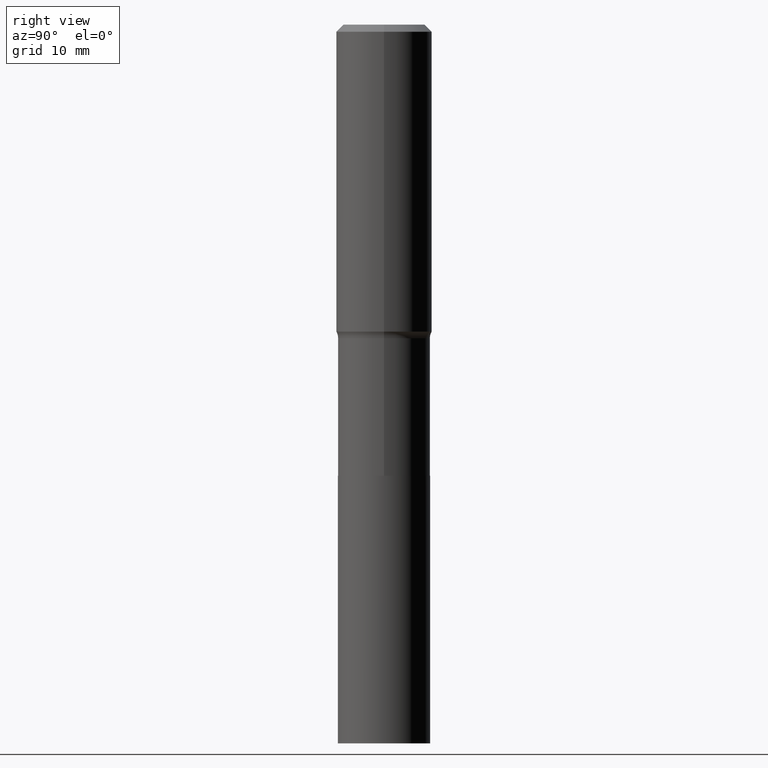
[diagram: clean part render]
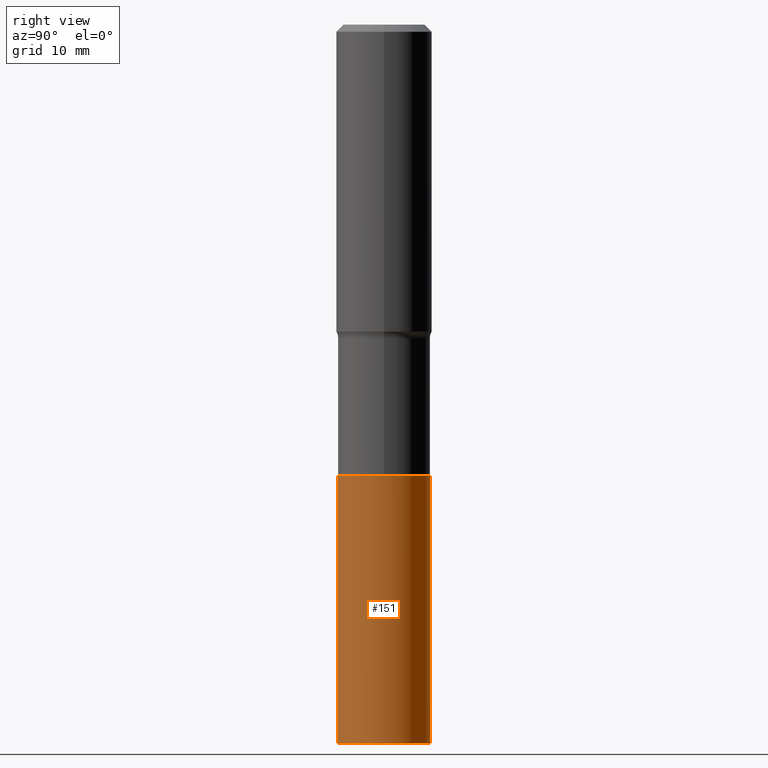
[diagram: same view with one face highlighted and labeled with its STEP entity id]
A machine part, right view. The second image highlights one B-rep face of the part: STEP entity #151.
In plain terms, the highlighted cylindrical surface (partial cylindrical patch) has radius 6.7462 mm, axis along (-0, 0, 1).
Its self-contained STEP definition (entity closure, byte-faithful):
#14 = EDGE_LOOP ( 'NONE', ( #70, #47, #389, #298 ) ) ;
#28 = AXIS2_PLACEMENT_3D ( 'NONE', #263, #376, #402 ) ;
#29 = VECTOR ( 'NONE', #385, 39.37007874015748143 ) ;
#47 = ORIENTED_EDGE ( 'NONE', *, *, #221, .T. ) ;
#59 = CIRCLE ( 'NONE', #321, 0.2656000000000000028 ) ;
#70 = ORIENTED_EDGE ( 'NONE', *, *, #204, .T. ) ;
#79 = DIRECTION ( 'NONE',  ( -6.982962677686265133E-15, -1.000000000000000000, 4.114228906120878260E-15 ) ) ;
#82 = FACE_OUTER_BOUND ( 'NONE', #14, .T. ) ;
#85 = DIRECTION ( 'NONE',  ( -6.982962677686265133E-15, -1.000000000000000000, 4.114228906120878260E-15 ) ) ;
#132 = LINE ( 'NONE', #240, #29 ) ;
#151 = ADVANCED_FACE ( 'NONE', ( #82 ), #295, .T. ) ;
#169 = CARTESIAN_POINT ( 'NONE',  ( 1.887201506178908155E-15, 0.2655999999999855699, -4.133900000000002350 ) ) ;
#178 = CIRCLE ( 'NONE', #311, 0.2656000000000000028 ) ;
#182 = DIRECTION ( 'NONE',  ( -2.446021775640540996E-29, 3.490689455109939628E-15, 1.000000000000000000 ) ) ;
#187 = VERTEX_POINT ( 'NONE', #372 ) ;
#204 = EDGE_CURVE ( 'NONE', #294, #331, #178, .T. ) ;
#221 = EDGE_CURVE ( 'NONE', #331, #187, #427, .T. ) ;
#236 = EDGE_CURVE ( 'NONE', #428, #187, #59, .T. ) ;
#240 = CARTESIAN_POINT ( 'NONE',  ( -1.854674887193408547E-15, -0.2656000000000090511, -2.594899999999999096 ) ) ;
#259 = CARTESIAN_POINT ( 'NONE',  ( -1.854674887193371076E-15, -0.2656000000000144357, -4.133899999999999686 ) ) ;
#263 = CARTESIAN_POINT ( 'NONE',  ( 6.345747005169811267E-29, -9.060044926164079731E-15, -2.594900000000000428 ) ) ;
#286 = VECTOR ( 'NONE', #338, 39.37007874015748143 ) ;
#294 = VERTEX_POINT ( 'NONE', #259 ) ;
#295 = CYLINDRICAL_SURFACE ( 'NONE', #28, 0.2656000000000000028 ) ;
#298 = ORIENTED_EDGE ( 'NONE', *, *, #434, .F. ) ;
#311 = AXIS2_PLACEMENT_3D ( 'NONE', #438, #405, #85 ) ;
#314 = CARTESIAN_POINT ( 'NONE',  ( -1.854674887193408547E-15, -0.2656000000000090511, -2.594899999999999096 ) ) ;
#321 = AXIS2_PLACEMENT_3D ( 'NONE', #388, #182, #79 ) ;
#331 = VERTEX_POINT ( 'NONE', #169 ) ;
#338 = DIRECTION ( 'NONE',  ( -2.446021775640541276E-29, 3.490689455109939233E-15, 1.000000000000000000 ) ) ;
#372 = CARTESIAN_POINT ( 'NONE',  ( 1.887201506178927482E-15, 0.2655999999999909544, -2.594900000000001317 ) ) ;
#376 = DIRECTION ( 'NONE',  ( -2.446021775640540996E-29, 3.490689455109939628E-15, 1.000000000000000000 ) ) ;
#385 = DIRECTION ( 'NONE',  ( -2.446021775640541276E-29, 3.490689455109939233E-15, 1.000000000000000000 ) ) ;
#388 = CARTESIAN_POINT ( 'NONE',  ( 6.345747005169811267E-29, -9.060044926164079731E-15, -2.594900000000000428 ) ) ;
#389 = ORIENTED_EDGE ( 'NONE', *, *, #236, .F. ) ;
#402 = DIRECTION ( 'NONE',  ( -6.982962677686265133E-15, -1.000000000000000000, 4.114228906120878260E-15 ) ) ;
#405 = DIRECTION ( 'NONE',  ( -2.446021775640540996E-29, 3.490689455109939628E-15, 1.000000000000000000 ) ) ;
#427 = LINE ( 'NONE', #468, #286 ) ;
#428 = VERTEX_POINT ( 'NONE', #314 ) ;
#434 = EDGE_CURVE ( 'NONE', #294, #428, #132, .T. ) ;
#438 = CARTESIAN_POINT ( 'NONE',  ( 1.011017451788060457E-28, -1.443221599757827905E-14, -4.133900000000000574 ) ) ;
#468 = CARTESIAN_POINT ( 'NONE',  ( 1.887201506178889222E-15, 0.2655999999999909544, -2.594900000000001317 ) ) ;